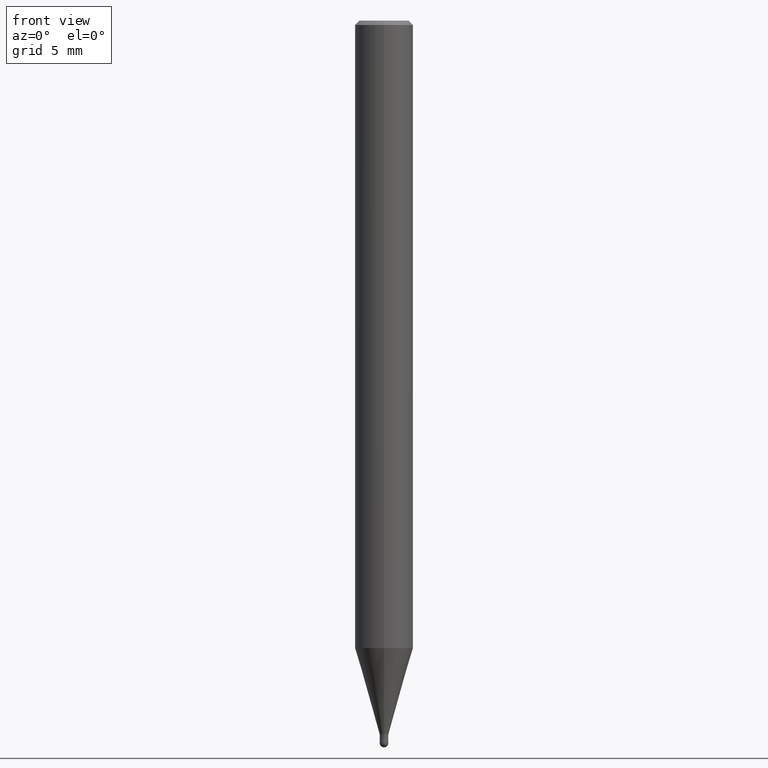
[diagram: clean part render]
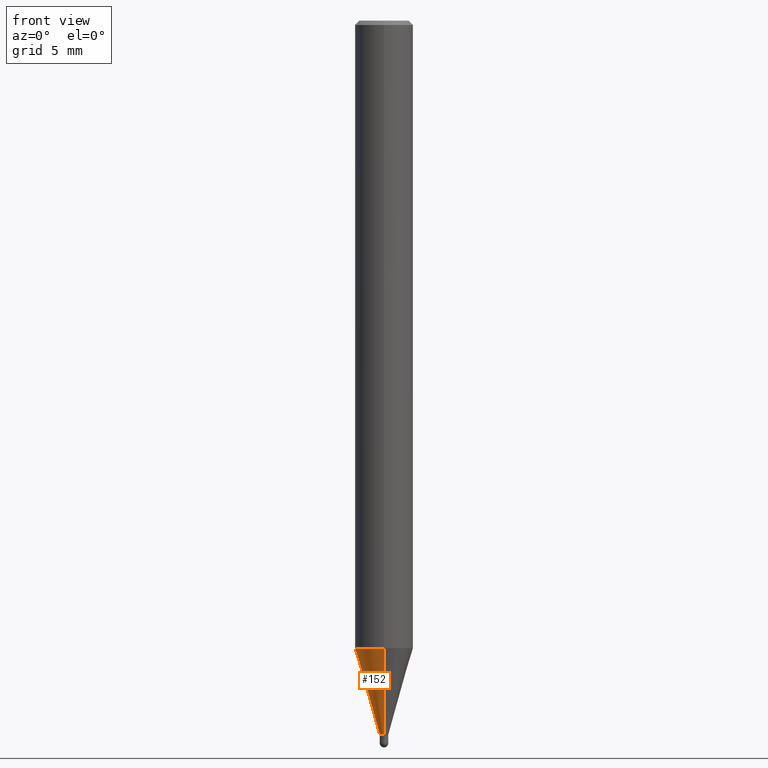
[diagram: same view with one face highlighted and labeled with its STEP entity id]
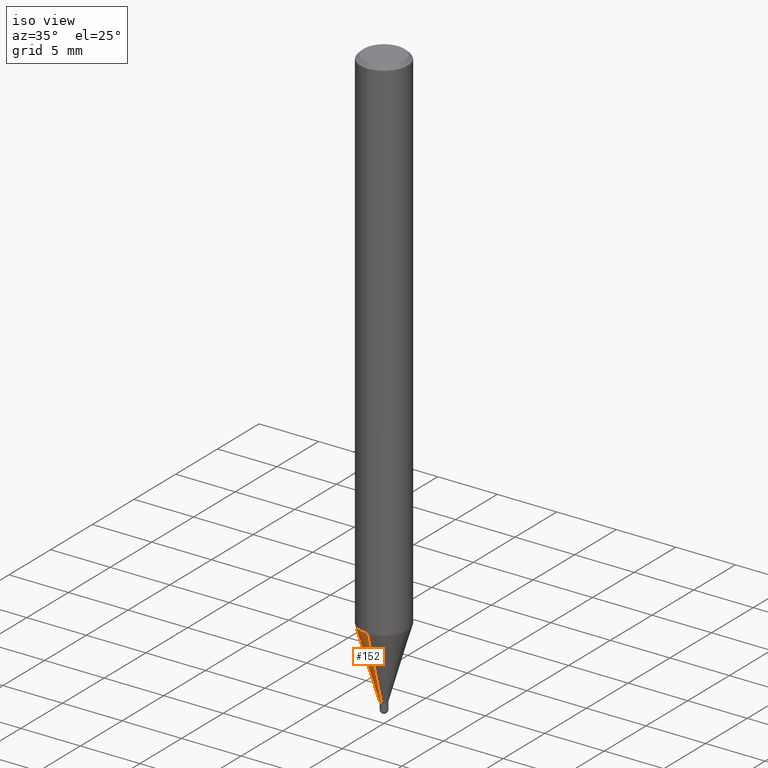
[diagram: same view with one face highlighted and labeled with its STEP entity id]
A machine part, front view. The second image highlights one B-rep face of the part: STEP entity #152.
A second angle (iso view) of the same face is appended — the face is thin or edge-on in the first view.
In plain terms, the highlighted conical surface has half-angle 15.999 deg.
Its self-contained STEP definition (entity closure, byte-faithful):
#96=VERTEX_POINT('',#225);
#152=ADVANCED_FACE('',(#285),#286,.T.);
#154=EDGE_CURVE('',#176,#96,#288,.T.);
#168=EDGE_CURVE('',#176,#188,#306,.T.);
#176=VERTEX_POINT('',#315);
#178=EDGE_CURVE('',#188,#186,#317,.T.);
#184=EDGE_CURVE('',#186,#96,#323,.T.);
#186=VERTEX_POINT('',#325);
#188=VERTEX_POINT('',#327);
#225=CARTESIAN_POINT('',(0.0,0.29995,-49.1));
#285=FACE_OUTER_BOUND('',#435,.T.);
#286=CONICAL_SURFACE('',#436,1.14995,0.279235008263551);
#288=CIRCLE('',#439,0.29995);
#306=LINE('',#460,#461);
#315=CARTESIAN_POINT('',(3.67320675829022E-017,-0.29995,-49.1));
#317=CIRCLE('',#474,1.99995);
#323=LINE('',#483,#484);
#325=CARTESIAN_POINT('',(0.0,1.99995,-43.171));
#327=CARTESIAN_POINT('',(2.44915147732706E-016,-1.99995,-43.171));
#435=EDGE_LOOP('',(#577,#578,#579,#580));
#436=AXIS2_PLACEMENT_3D('',#581,#582,#583);
#439=AXIS2_PLACEMENT_3D('',#584,#585,#586);
#460=CARTESIAN_POINT('',(1.40823607657804E-016,-1.14995,-46.1355));
#461=VECTOR('',#623,1.0);
#474=AXIS2_PLACEMENT_3D('',#632,#633,#634);
#483=CARTESIAN_POINT('',(-1.40823607657804E-016,1.14995,-46.1355));
#484=VECTOR('',#641,1.0);
#577=ORIENTED_EDGE('',*,*,#184,.T.);
#578=ORIENTED_EDGE('',*,*,#154,.F.);
#579=ORIENTED_EDGE('',*,*,#168,.T.);
#580=ORIENTED_EDGE('',*,*,#178,.T.);
#581=CARTESIAN_POINT('',(0.0,0.0,-46.1355));
#582=DIRECTION('',(-0.0,-0.0,1.0));
#583=DIRECTION('',(0.0,1.0,0.0));
#584=CARTESIAN_POINT('',(0.0,0.0,-49.1));
#585=DIRECTION('',(0.0,0.0,-1.0));
#586=DIRECTION('',(0.0,1.0,0.0));
#623=DIRECTION('',(3.37526454267793E-017,-0.275620368303878,0.961266566866878));
#632=CARTESIAN_POINT('',(0.0,0.0,-43.171));
#633=DIRECTION('',(0.0,0.0,-1.0));
#634=DIRECTION('',(0.0,1.0,0.0));
#641=DIRECTION('',(3.37526454267793E-017,-0.275620368303878,-0.961266566866878));